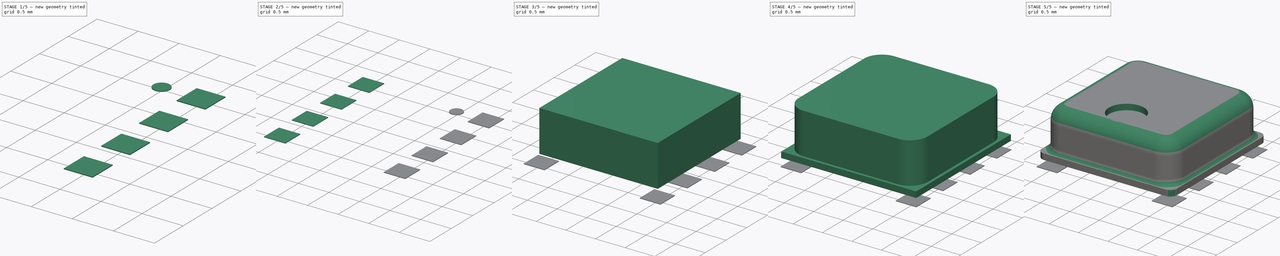
[diagram: build sequence overview — one tinted view per stage of 5, left to right]
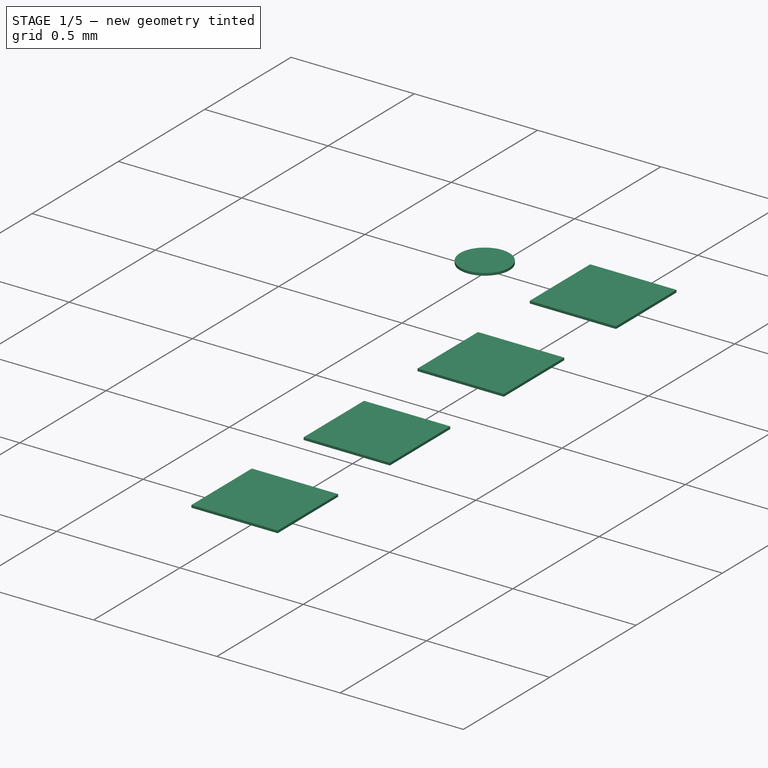
[diagram: stage 1 of 5 — iso view after this stage's code; geometry added in this stage tinted green]
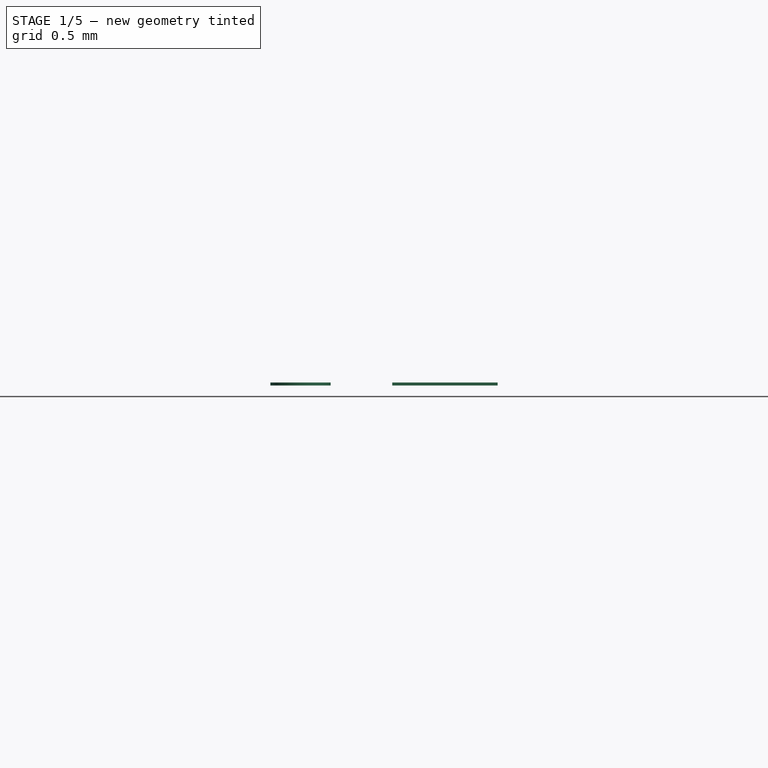
[diagram: stage 1 of 5 — front view after this stage's code; geometry added in this stage tinted green]
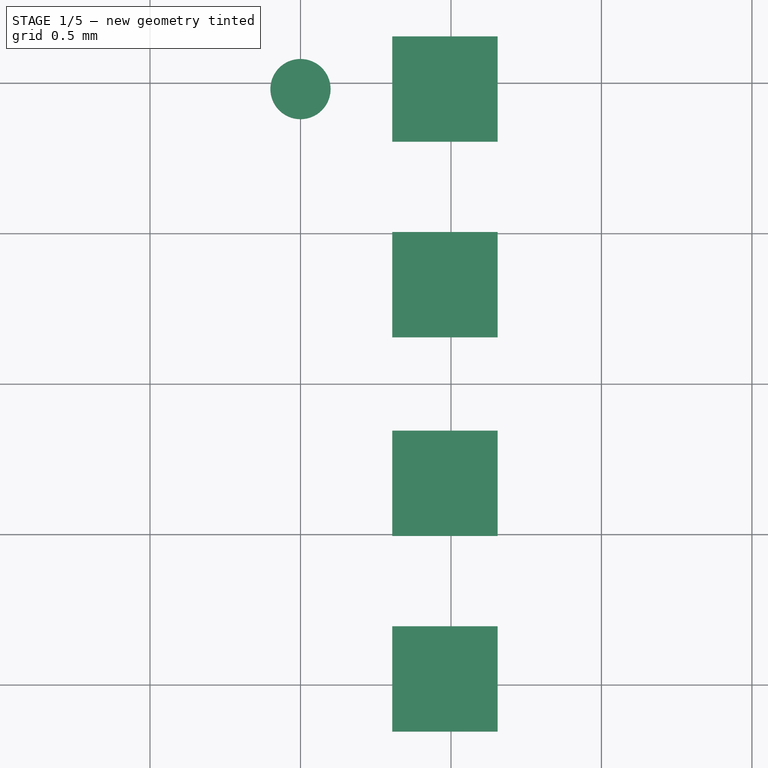
[diagram: stage 1 of 5 — top view after this stage's code; geometry added in this stage tinted green]
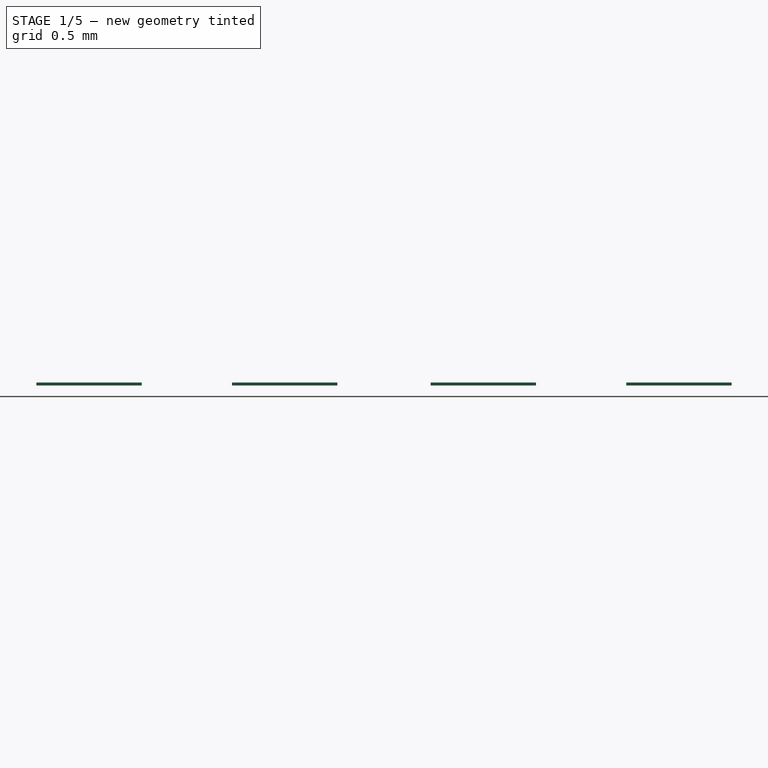
[diagram: stage 1 of 5 — right view after this stage's code; geometry added in this stage tinted green]
FCSTD DOCUMENT  (FreeCAD 0.17R12595 (Git))
Label: Bosch_LGA-8_2.5x2.5mm_Pitch0.65mm_ClockwisePinNumbering
License: All rights reserved
LicenseURL: http://en.wikipedia.org/wiki/All_rights_reserved
objects: Sketcher::SketchObject×15, PartDesign::Pad×14, PartDesign::Body×13, PartDesign::Fillet×7, PartDesign::ShapeBinder×3, PartDesign::Pocket×1, Part::Cut×1, Part::MultiFuse×1, Part::Feature×1
note: 71 computed .brp shape members not serialized (recipe doc carries the construction recipe); baked Part::Feature solids carry a one-line shape summary decoded from their .brp

FEATURE [PartDesign::Body] Body007  label="pad_5_SDO"
  Group = -> [Sketch009,Pad008]
  Origin = -> Origin007
  Tip = -> Pad008
FEATURE [Sketcher::SketchObject] Sketch010
  MapMode = 5
  Support = -> [XY_Plane008]
  sketch-geometry (4):
    g0: LineSegment StartX=0.805 StartY=-0.805 StartZ=0 EndX=1.155 EndY=-0.805 EndZ=0
    g1: LineSegment StartX=1.155 StartY=-0.805 StartZ=0 EndX=1.155 EndY=-1.155 EndZ=0
    g2: LineSegment StartX=1.155 StartY=-1.155 StartZ=0 EndX=0.805 EndY=-1.155 EndZ=0
    g3: LineSegment StartX=0.805 StartY=-1.155 StartZ=0 EndX=0.805 EndY=-0.805 EndZ=0
  constraints (12):
    c: Coincident(g0,g1)
    c: Coincident(g1,g2)
    c: Coincident(g2,g3)
    c: Coincident(g3,g0)
    c: Horizontal(g0)
    c: Horizontal(g2)
    c: Vertical(g1)
    c: Vertical(g3)
    c: Equal(g0,g1)
    c: Distance(g0) = 0.35
    c: DistanceX(g0) = 0.805
    c: DistanceY(g0) = -0.805
FEATURE [PartDesign::Pad] Pad009
  Length = 0.01
  Length2 = 100
  Profile = -> Sketch010
  Reversed = true
  Type = 0
FEATURE [PartDesign::Body] Body008  label="pad_4_SCK"
  Group = -> [Sketch010,Pad009]
  Origin = -> Origin008
  Tip = -> Pad009
FEATURE [Sketcher::SketchObject] Sketch011
  MapMode = 5
  Support = -> [XY_Plane009]
  sketch-geometry (4):
    g0: LineSegment StartX=0.805 StartY=-0.155 StartZ=0 EndX=1.155 EndY=-0.155 EndZ=0
    g1: LineSegment StartX=1.155 StartY=-0.155 StartZ=0 EndX=1.155 EndY=-0.505 EndZ=0
    g2: LineSegment StartX=1.155 StartY=-0.505 StartZ=0 EndX=0.805 EndY=-0.505 EndZ=0
    g3: LineSegment StartX=0.805 StartY=-0.505 StartZ=0 EndX=0.805 EndY=-0.155 EndZ=0
  constraints (12):
    c: Coincident(g0,g1)
    c: Coincident(g1,g2)
    c: Coincident(g2,g3)
    c: Coincident(g3,g0)
    c: Horizontal(g0)
    c: Horizontal(g2)
    c: Vertical(g1)
    c: Vertical(g3)
    c: Equal(g0,g1)
    c: Distance(g1) = 0.35
    c: DistanceX(g2) = 0.805
    c: DistanceY(g2) = -0.505
FEATURE [PartDesign::Pad] Pad010
  Length = 0.01
  Length2 = 100
  Profile = -> Sketch011
  Reversed = true
  Type = 0
FEATURE [PartDesign::Body] Body009  label="pad_3_SDI"
  Group = -> [Sketch011,Pad010]
  Origin = -> Origin009
  Tip = -> Pad010
FEATURE [Sketcher::SketchObject] Sketch012
  MapMode = 5
  Support = -> [XY_Plane010]
  sketch-geometry (4):
    g0: LineSegment StartX=0.805 StartY=0.505 StartZ=0 EndX=1.155 EndY=0.505 EndZ=0
    g1: LineSegment StartX=1.155 StartY=0.505 StartZ=0 EndX=1.155 EndY=0.155 EndZ=0
    g2: LineSegment StartX=1.155 StartY=0.155 StartZ=0 EndX=0.805 EndY=0.155 EndZ=0
    g3: LineSegment StartX=0.805 StartY=0.155 StartZ=0 EndX=0.805 EndY=0.505 EndZ=0
  constraints (12):
    c: Coincident(g0,g1)
    c: Coincident(g1,g2)
    c: Coincident(g2,g3)
    c: Coincident(g3,g0)
    c: Horizontal(g0)
    c: Horizontal(g2)
    c: Vertical(g1)
    c: Vertical(g3)
    c: Equal(g1,g0)
    c: Distance(g0) = 0.35
    c: DistanceX(g0) = 0.805
    c: DistanceY(g0) = 0.505
FEATURE [PartDesign::Pad] Pad011
  Length = 0.01
  Length2 = 100
  Profile = -> Sketch012
  Reversed = true
  Type = 0
FEATURE [PartDesign::Body] Body010  label="pad_2_CSB"
  Group = -> [Sketch012,Pad011]
  Origin = -> Origin010
  Tip = -> Pad011
FEATURE [Sketcher::SketchObject] Sketch013
  MapMode = 5
  Support = -> [XY_Plane011]
  sketch-geometry (4):
    g0: LineSegment StartX=0.805 StartY=1.155 StartZ=0 EndX=1.155 EndY=1.155 EndZ=0
    g1: LineSegment StartX=1.155 StartY=1.155 StartZ=0 EndX=1.155 EndY=0.805 EndZ=0
    g2: LineSegment StartX=1.155 StartY=0.805 StartZ=0 EndX=0.805 EndY=0.805 EndZ=0
    g3: LineSegment StartX=0.805 StartY=0.805 StartZ=0 EndX=0.805 EndY=1.155 EndZ=0
  constraints (12):
    c: Coincident(g0,g1)
    c: Coincident(g1,g2)
    c: Coincident(g2,g3)
    c: Coincident(g3,g0)
    c: Horizontal(g0)
    c: Horizontal(g2)
    c: Vertical(g1)
    c: Vertical(g3)
    c: Equal(g0,g1)
    c: Distance(g0) = 0.35
    c: DistanceX(g0) = 0.805
    c: DistanceY(g2) = 0.805
FEATURE [PartDesign::Pad] Pad012
  Length = 0.01
  Length2 = 100
  Profile = -> Sketch013
  Reversed = true
  Type = 0
FEATURE [PartDesign::Body] Body011  label="pad_1_GND"
  Group = -> [Sketch013,Pad012]
  Origin = -> Origin011
  Tip = -> Pad012
FEATURE [Sketcher::SketchObject] Sketch014
  MapMode = 5
  Support = -> [XY_Plane012]
  sketch-geometry (1):
    g0: Circle CenterX=0.5 CenterY=0.98 CenterZ=0 NormalX=0 NormalY=0 NormalZ=1 AngleXU=0 Radius=0.1
  constraints (3):
    c: Radius(g0) = 0.1
    c: DistanceX(g0) = 0.5
    c: DistanceY(g0) = 0.98
FEATURE [PartDesign::Pad] Pad013
  Length = 0.01
  Length2 = 100
  Profile = -> Sketch014
  Reversed = true
  Type = 0
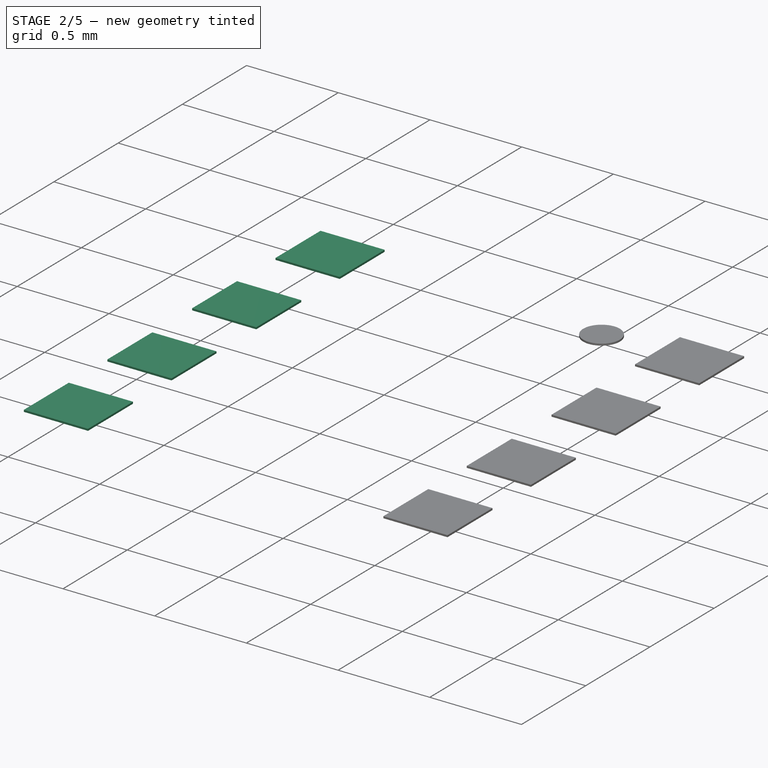
[diagram: stage 2 of 5 — iso view after this stage's code; geometry added in this stage tinted green]
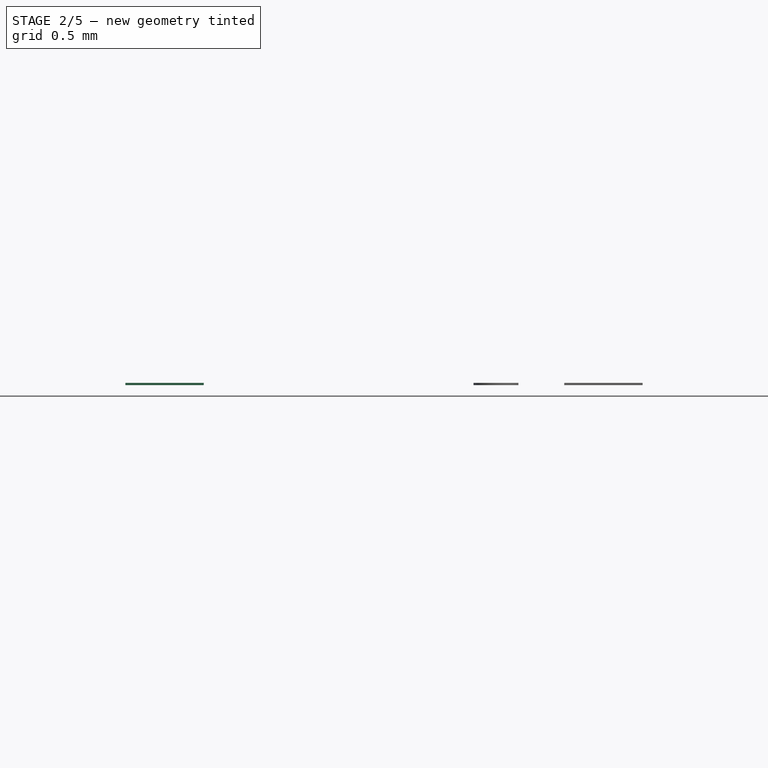
[diagram: stage 2 of 5 — front view after this stage's code; geometry added in this stage tinted green]
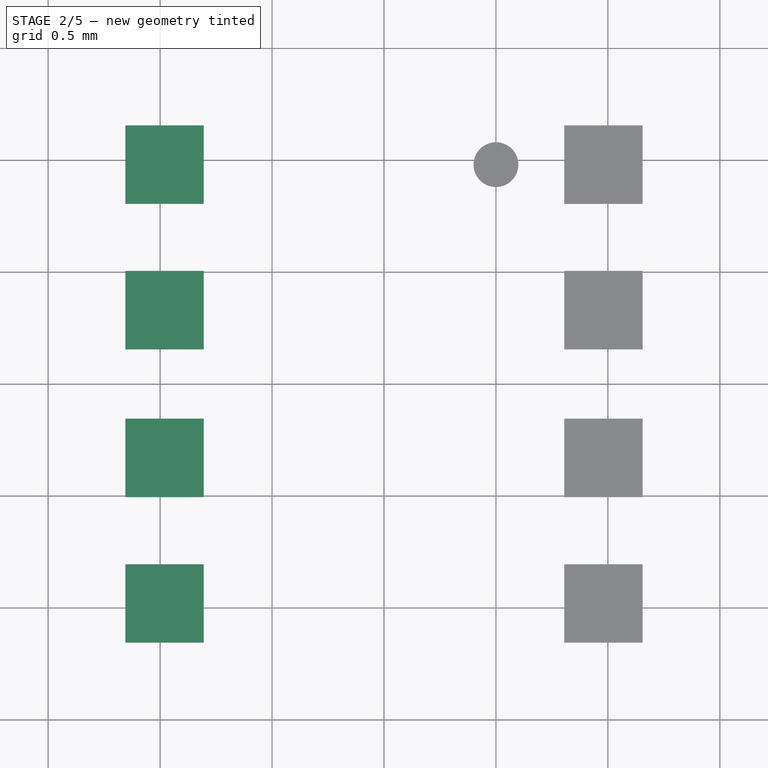
[diagram: stage 2 of 5 — top view after this stage's code; geometry added in this stage tinted green]
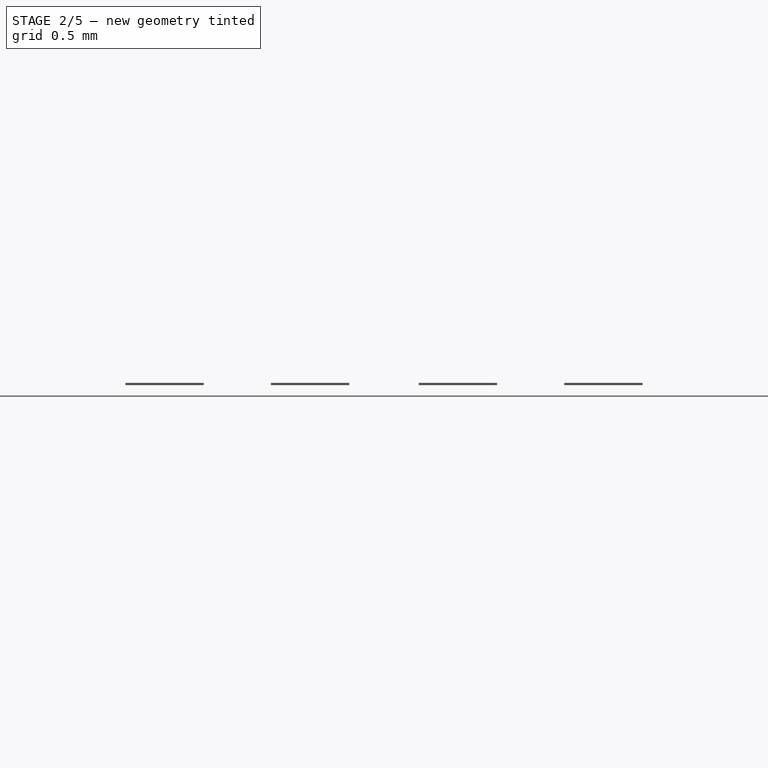
[diagram: stage 2 of 5 — right view after this stage's code; geometry added in this stage tinted green]
FEATURE [PartDesign::Body] Body003  label="metal_package_base"
  Group = -> [ReferencePad002,Sketch005,Pad004,Fillet006]
  Origin = -> Origin003
  Tip = -> Fillet006
FEATURE [Sketcher::SketchObject] Sketch006
  MapMode = 5
  Support = -> [XY_Plane004]
  sketch-geometry (4):
    g0: LineSegment StartX=-1.155 StartY=1.155 StartZ=0 EndX=-0.805 EndY=1.155 EndZ=0
    g1: LineSegment StartX=-0.805 StartY=1.155 StartZ=0 EndX=-0.805 EndY=0.805 EndZ=0
    g2: LineSegment StartX=-0.805 StartY=0.805 StartZ=0 EndX=-1.155 EndY=0.805 EndZ=0
    g3: LineSegment StartX=-1.155 StartY=0.805 StartZ=0 EndX=-1.155 EndY=1.155 EndZ=0
  constraints (12):
    c: Coincident(g0,g1)
    c: Coincident(g1,g2)
    c: Coincident(g2,g3)
    c: Coincident(g3,g0)
    c: Horizontal(g0)
    c: Horizontal(g2)
    c: Vertical(g1)
    c: Vertical(g3)
    c: Equal(g1,g0)
    c: Distance(g0) = 0.35
    c: DistanceX(g0) = -0.805
    c: DistanceY(g1) = 0.805
FEATURE [PartDesign::Pad] Pad005
  Length = 0.01
  Length2 = 100
  Profile = -> Sketch006
  Reversed = true
  Type = 0
FEATURE [PartDesign::Body] Body004  label="pad_8_VDD"
  Group = -> [Sketch006,Pad005]
  Origin = -> Origin004
  Tip = -> Pad005
FEATURE [Sketcher::SketchObject] Sketch007
  MapMode = 5
  Support = -> [XY_Plane005]
  sketch-geometry (4):
    g0: LineSegment StartX=-1.155 StartY=0.505 StartZ=0 EndX=-0.805 EndY=0.505 EndZ=0
    g1: LineSegment StartX=-0.805 StartY=0.505 StartZ=0 EndX=-0.805 EndY=0.155 EndZ=0
    g2: LineSegment StartX=-0.805 StartY=0.155 StartZ=0 EndX=-1.155 EndY=0.155 EndZ=0
    g3: LineSegment StartX=-1.155 StartY=0.155 StartZ=0 EndX=-1.155 EndY=0.505 EndZ=0
  constraints (12):
    c: Coincident(g0,g1)
    c: Coincident(g1,g2)
    c: Coincident(g2,g3)
    c: Coincident(g3,g0)
    c: Horizontal(g0)
    c: Horizontal(g2)
    c: Vertical(g1)
    c: Vertical(g3)
    c: Equal(g1,g0)
    c: Distance(g0) = 0.35
    c: DistanceX(g0) = -0.805
    c: DistanceY(g0) = 0.505
FEATURE [PartDesign::Pad] Pad006
  Length = 0.01
  Length2 = 100
  Profile = -> Sketch007
  Reversed = true
  Type = 0
FEATURE [PartDesign::Body] Body005  label="pad_7_GND"
  Group = -> [Sketch007,Pad006]
  Origin = -> Origin005
  Tip = -> Pad006
FEATURE [Sketcher::SketchObject] Sketch008
  MapMode = 5
  Support = -> [XY_Plane006]
  sketch-geometry (4):
    g0: LineSegment StartX=-1.155 StartY=-0.155 StartZ=0 EndX=-0.805 EndY=-0.155 EndZ=0
    g1: LineSegment StartX=-0.805 StartY=-0.155 StartZ=0 EndX=-0.805 EndY=-0.505 EndZ=0
    g2: LineSegment StartX=-0.805 StartY=-0.505 StartZ=0 EndX=-1.155 EndY=-0.505 EndZ=0
    g3: LineSegment StartX=-1.155 StartY=-0.505 StartZ=0 EndX=-1.155 EndY=-0.155 EndZ=0
  constraints (12):
    c: Coincident(g0,g1)
    c: Coincident(g1,g2)
    c: Coincident(g2,g3)
    c: Coincident(g3,g0)
    c: Horizontal(g0)
    c: Horizontal(g2)
    c: Vertical(g1)
    c: Vertical(g3)
    c: Equal(g1,g0)
    c: Distance(g0) = 0.35
    c: DistanceX(g0) = -0.805
    c: DistanceY(g1) = -0.505
FEATURE [PartDesign::Pad] Pad007
  Length = 0.01
  Length2 = 100
  Profile = -> Sketch008
  Reversed = true
  Type = 0
FEATURE [PartDesign::Body] Body006  label="pad_6_VDDIO"
  Group = -> [Sketch008,Pad007]
  Origin = -> Origin006
  Tip = -> Pad007
FEATURE [Sketcher::SketchObject] Sketch009
  MapMode = 5
  Support = -> [XY_Plane007]
  sketch-geometry (4):
    g0: LineSegment StartX=-1.155 StartY=-0.805 StartZ=0 EndX=-0.805 EndY=-0.805 EndZ=0
    g1: LineSegment StartX=-0.805 StartY=-0.805 StartZ=0 EndX=-0.805 EndY=-1.155 EndZ=0
    g2: LineSegment StartX=-0.805 StartY=-1.155 StartZ=0 EndX=-1.155 EndY=-1.155 EndZ=0
    g3: LineSegment StartX=-1.155 StartY=-1.155 StartZ=0 EndX=-1.155 EndY=-0.805 EndZ=0
  constraints (12):
    c: Coincident(g0,g1)
    c: Coincident(g1,g2)
    c: Coincident(g2,g3)
    c: Coincident(g3,g0)
    c: Horizontal(g0)
    c: Horizontal(g2)
    c: Vertical(g1)
    c: Vertical(g3)
    c: Equal(g1,g0)
    c: Distance(g0) = 0.35
    c: DistanceX(g0) = -0.805
    c: DistanceY(g0) = -0.805
FEATURE [PartDesign::Pad] Pad008
  Length = 0.01
  Length2 = 100
  Profile = -> Sketch009
  Reversed = true
  Type = 0
FEATURE [PartDesign::Body] Body012  label="marker_pad"
  Group = -> [Sketch014,Pad013]
  Origin = -> Origin012
  Tip = -> Pad013
FEATURE [Part::MultiFuse] Fusion  label="pads"
  Shapes = -> [Body004,Body007,Body005,Body006,Body009,Body012,Body010,Body008,Body011]
FEATURE [Part::Feature] Shape  label="Bosch_LGA-8_2.5x2.5mm_Pitch0.65mm_ClockwisePinNumbering"
  shape: bbox 2.5 x 2.5 x 0.94 mm, 112 faces (baked)
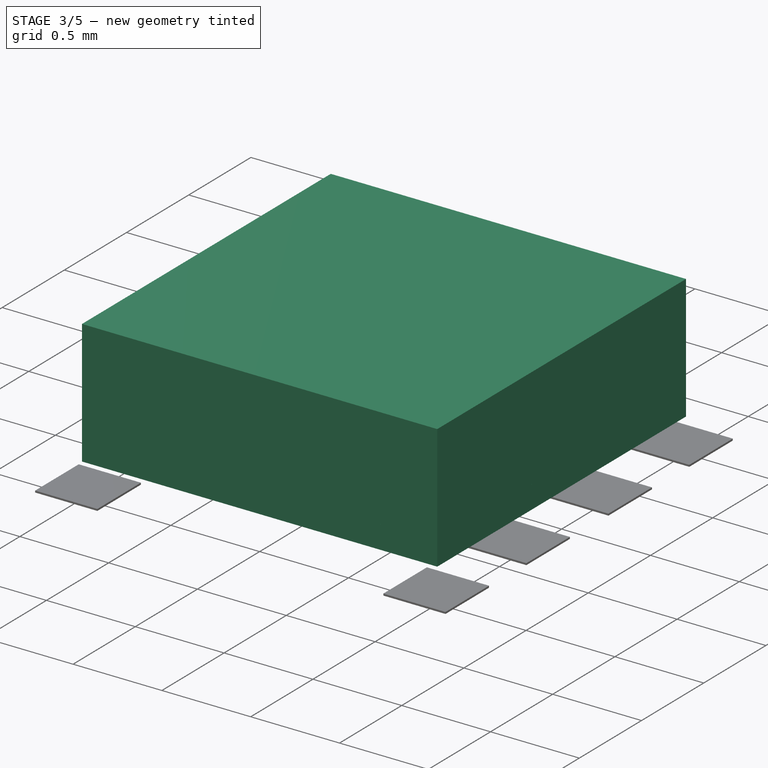
[diagram: stage 3 of 5 — iso view after this stage's code; geometry added in this stage tinted green]
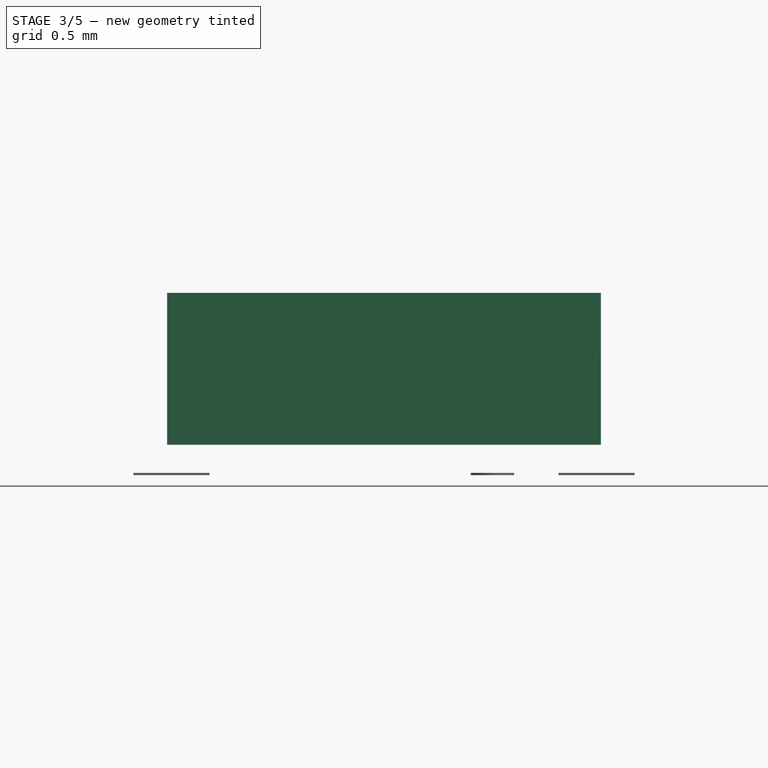
[diagram: stage 3 of 5 — front view after this stage's code; geometry added in this stage tinted green]
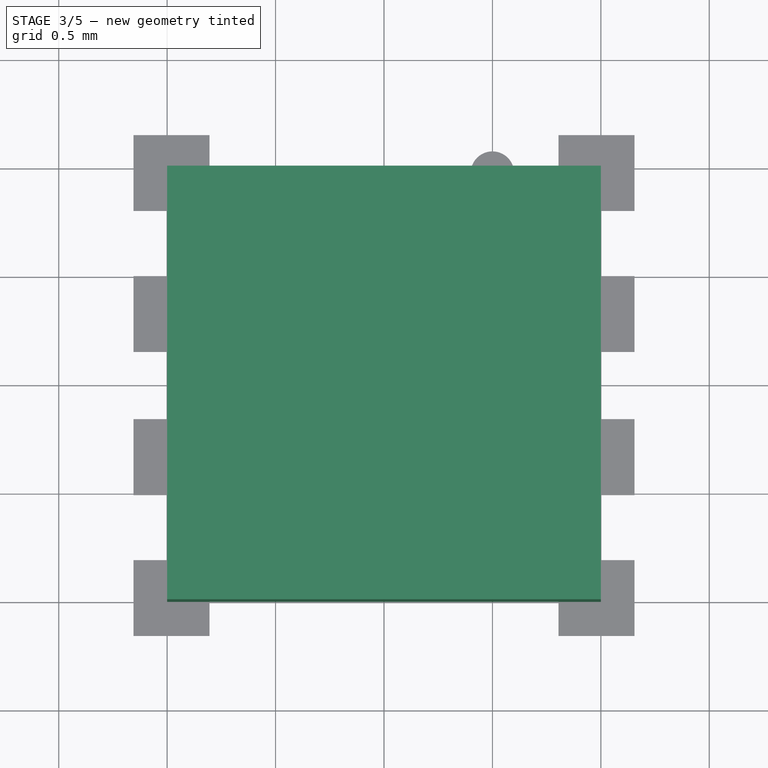
[diagram: stage 3 of 5 — top view after this stage's code; geometry added in this stage tinted green]
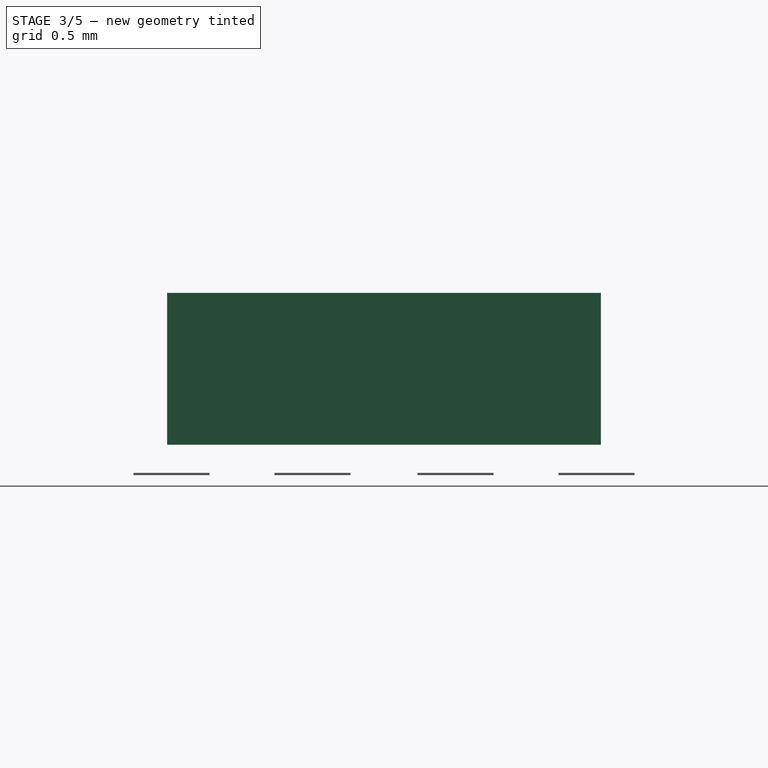
[diagram: stage 3 of 5 — right view after this stage's code; geometry added in this stage tinted green]
FEATURE [Sketcher::SketchObject] Sketch
  MapMode = 5
  Support = -> [XY_Plane]
  sketch-geometry (4):
    g0: LineSegment StartX=-1.25 StartY=1.25 StartZ=0 EndX=1.25 EndY=1.25 EndZ=0
    g1: LineSegment StartX=1.25 StartY=1.25 StartZ=0 EndX=1.25 EndY=-1.25 EndZ=0
    g2: LineSegment StartX=1.25 StartY=-1.25 StartZ=0 EndX=-1.25 EndY=-1.25 EndZ=0
    g3: LineSegment StartX=-1.25 StartY=-1.25 StartZ=0 EndX=-1.25 EndY=1.25 EndZ=0
  constraints (12):
    c: Coincident(g0,g1)
    c: Coincident(g1,g2)
    c: Coincident(g2,g3)
    c: Coincident(g3,g0)
    c: Horizontal(g0)
    c: Horizontal(g2)
    c: Vertical(g1)
    c: Vertical(g3)
    c: Symmetric(g0,g1,g-1)
    c: Symmetric(g0,g0,g-2)
    c: Equal(g0,g1)
    c: Distance(g0) = 2.5
FEATURE [PartDesign::Pad] Pad
  Length = 0.13
  Length2 = 100
  Profile = -> Sketch
  Type = 0
FEATURE [PartDesign::Body] Body001  label="metal_can"
  Group = -> [ReferencePad,Sketch001,Pad001,Sketch002,Pad002,Fillet,Fillet001,Fillet002,Fillet003,Sketch003,Pocket]
  Origin = -> Origin001
  Tip = -> Pocket
FEATURE [PartDesign::ShapeBinder] ReferencePad001
  Placement = pos=(0,0,0.13) rot=(0,0,1;0rad)
  Support = -> [Pad]
FEATURE [Sketcher::SketchObject] Sketch004
  MapMode = 5
  Placement = pos=(0,0,0.13) rot=(0,0,1;0rad)
  Support = -> [ReferencePad001]
  sketch-geometry (4):
    g0: LineSegment StartX=-1 StartY=1 StartZ=0 EndX=1 EndY=1 EndZ=0
    g1: LineSegment StartX=1 StartY=1 StartZ=0 EndX=1 EndY=-1 EndZ=0
    g2: LineSegment StartX=1 StartY=-1 StartZ=0 EndX=-1 EndY=-1 EndZ=0
    g3: LineSegment StartX=-1 StartY=-1 StartZ=0 EndX=-1 EndY=1 EndZ=0
  constraints (12):
    c: Coincident(g0,g1)
    c: Coincident(g1,g2)
    c: Coincident(g2,g3)
    c: Coincident(g3,g0)
    c: Horizontal(g0)
    c: Horizontal(g2)
    c: Vertical(g1)
    c: Vertical(g3)
    c: Symmetric(g0,g1,g-1)
    c: Symmetric(g0,g0,g-2)
    c: Equal(g1,g0)
    c: Distance(g0) = 2
FEATURE [PartDesign::Pad] Pad003
  Length = 0.7
  Length2 = 100
  Placement = pos=(0,0,0.13) rot=(0,0,1;0rad)
  Profile = -> Sketch004
  Type = 0
FEATURE [PartDesign::ShapeBinder] ReferencePad002
  Placement = pos=(0,0,0.13) rot=(0,0,1;0rad)
  Support = -> [Pad]
FEATURE [Sketcher::SketchObject] Sketch005
  MapMode = 5
  Placement = pos=(0,0,0.13) rot=(0,0,1;0rad)
  Support = -> [ReferencePad002]
  sketch-geometry (4):
    g0: LineSegment StartX=-1 StartY=1 StartZ=0 EndX=1 EndY=1 EndZ=0
    g1: LineSegment StartX=1 StartY=1 StartZ=0 EndX=1 EndY=-1 EndZ=0
    g2: LineSegment StartX=1 StartY=-1 StartZ=0 EndX=-1 EndY=-1 EndZ=0
    g3: LineSegment StartX=-1 StartY=-1 StartZ=0 EndX=-1 EndY=1 EndZ=0
  constraints (12):
    c: Coincident(g0,g1)
    c: Coincident(g1,g2)
    c: Coincident(g2,g3)
    c: Coincident(g3,g0)
    c: Horizontal(g0)
    c: Horizontal(g2)
    c: Vertical(g1)
    c: Vertical(g3)
    c: Symmetric(g0,g0,g-2)
    c: Symmetric(g0,g1,g-1)
    c: Equal(g0,g1)
    c: Distance(g0) = 2
FEATURE [PartDesign::Pad] Pad004
  Length = 0.13
  Length2 = 100
  Placement = pos=(0,0,0.13) rot=(0,0,1;0rad)
  Profile = -> Sketch005
  Type = 0
FEATURE [PartDesign::Fillet] Fillet006
  Base = -> Pad004 [Edge1,Edge8,Edge5,Edge2]
  BaseFeature = -> Pad004
  Placement = pos=(0,0,0.13) rot=(0,0,1;0rad)
  Radius = 0.3
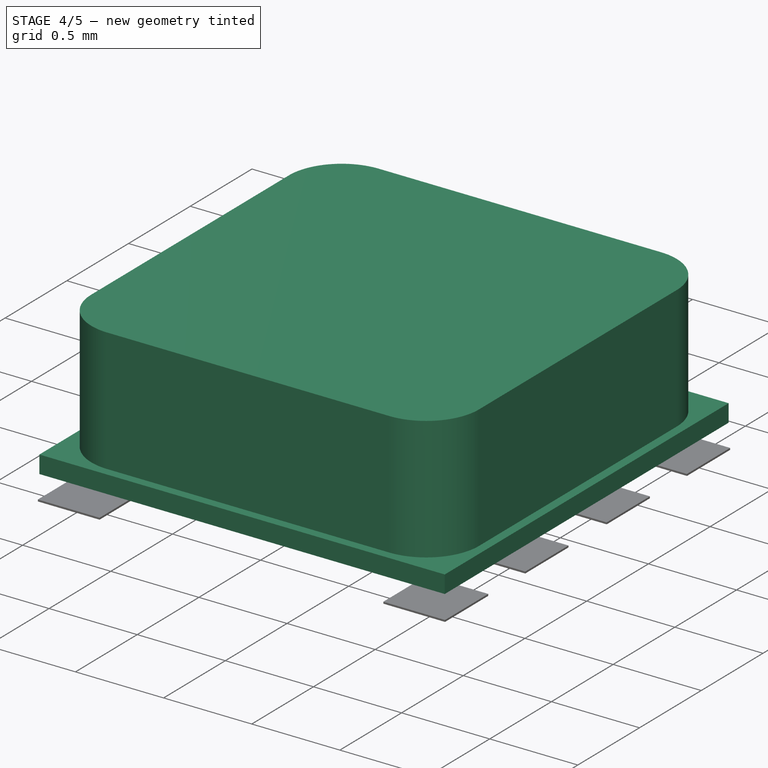
[diagram: stage 4 of 5 — iso view after this stage's code; geometry added in this stage tinted green]
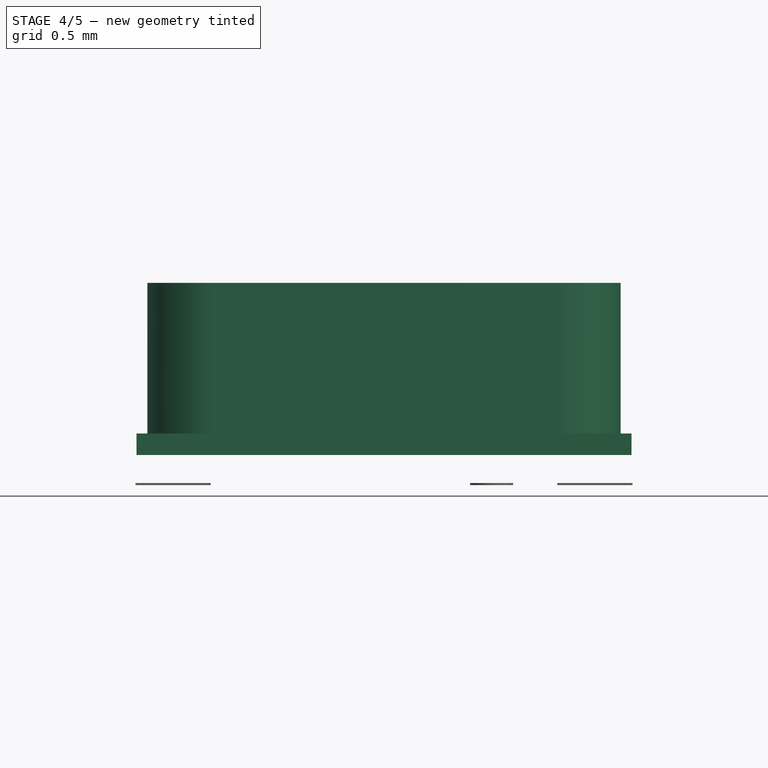
[diagram: stage 4 of 5 — front view after this stage's code; geometry added in this stage tinted green]
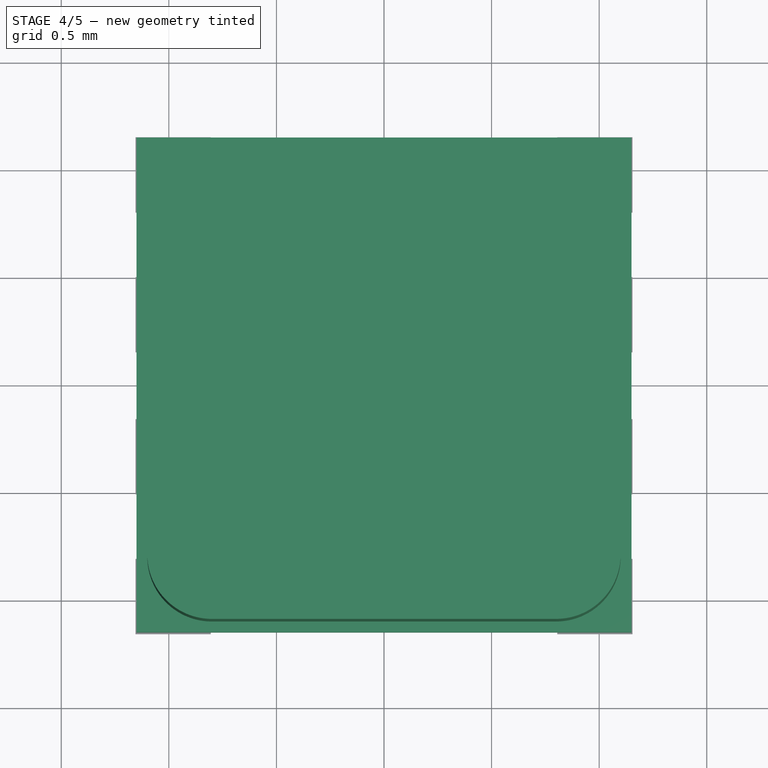
[diagram: stage 4 of 5 — top view after this stage's code; geometry added in this stage tinted green]
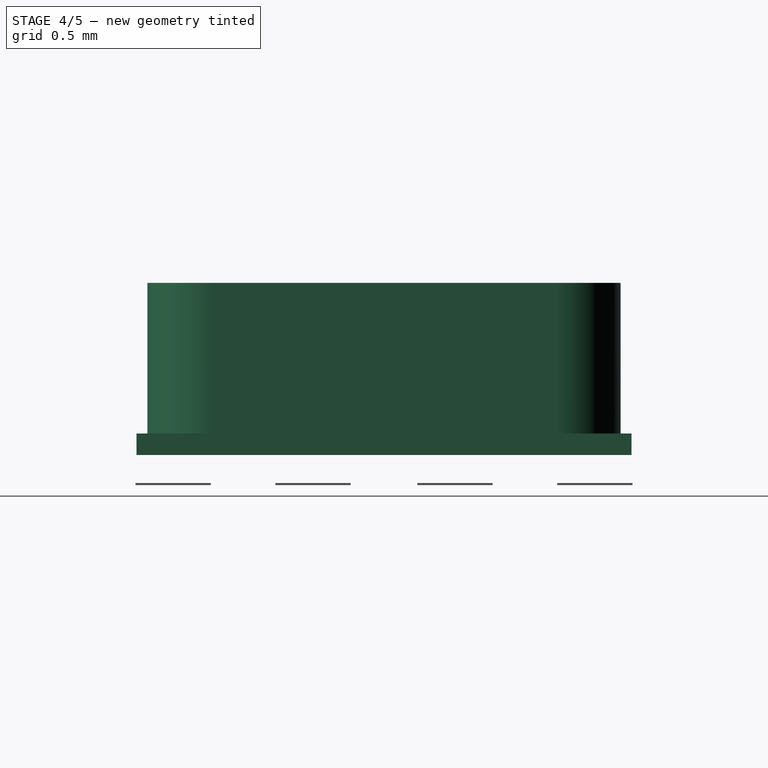
[diagram: stage 4 of 5 — right view after this stage's code; geometry added in this stage tinted green]
FEATURE [PartDesign::Body] Body  label="base_pacb"
  Group = -> [Sketch,Pad]
  Origin = -> Origin
  Tip = -> Pad
FEATURE [PartDesign::ShapeBinder] ReferencePad
  Placement = pos=(0,0,0.13) rot=(0,0,1;0rad)
  Support = -> [Pad]
FEATURE [Sketcher::SketchObject] Sketch001
  MapMode = 5
  Placement = pos=(0,0,0.13) rot=(0,0,1;0rad)
  Support = -> [ReferencePad]
  sketch-geometry (4):
    g0: LineSegment StartX=-1.15 StartY=1.15 StartZ=0 EndX=1.15 EndY=1.15 EndZ=0
    g1: LineSegment StartX=1.15 StartY=1.15 StartZ=0 EndX=1.15 EndY=-1.15 EndZ=0
    g2: LineSegment StartX=1.15 StartY=-1.15 StartZ=0 EndX=-1.15 EndY=-1.15 EndZ=0
    g3: LineSegment StartX=-1.15 StartY=-1.15 StartZ=0 EndX=-1.15 EndY=1.15 EndZ=0
  constraints (12):
    c: Coincident(g0,g1)
    c: Coincident(g1,g2)
    c: Coincident(g2,g3)
    c: Coincident(g3,g0)
    c: Horizontal(g0)
    c: Horizontal(g2)
    c: Vertical(g1)
    c: Vertical(g3)
    c: Symmetric(g0,g0,g-2)
    c: Symmetric(g0,g1,g-1)
    c: Equal(g0,g1)
    c: Distance(g0) = 2.3
FEATURE [PartDesign::Pad] Pad001
  Length = 0.1
  Length2 = 100
  Placement = pos=(0,0,0.13) rot=(0,0,1;0rad)
  Profile = -> Sketch001
  Type = 0
FEATURE [Sketcher::SketchObject] Sketch002
  MapMode = 5
  Placement = pos=(0,0,0.23) rot=(0,0,1;0rad)
  Support = -> [Pad001]
  sketch-geometry (4):
    g0: LineSegment StartX=-1.1 StartY=1.1 StartZ=0 EndX=1.1 EndY=1.1 EndZ=0
    g1: LineSegment StartX=1.1 StartY=1.1 StartZ=0 EndX=1.1 EndY=-1.1 EndZ=0
    g2: LineSegment StartX=1.1 StartY=-1.1 StartZ=0 EndX=-1.1 EndY=-1.1 EndZ=0
    g3: LineSegment StartX=-1.1 StartY=-1.1 StartZ=0 EndX=-1.1 EndY=1.1 EndZ=0
  constraints (12):
    c: Coincident(g0,g1)
    c: Coincident(g1,g2)
    c: Coincident(g2,g3)
    c: Coincident(g3,g0)
    c: Horizontal(g0)
    c: Horizontal(g2)
    c: Vertical(g1)
    c: Vertical(g3)
    c: Symmetric(g0,g0,g-2)
    c: Symmetric(g0,g1,g-1)
    c: Equal(g0,g1)
    c: Distance(g0) = 2.2
FEATURE [PartDesign::Pad] Pad002
  BaseFeature = -> Pad001
  Length = 0.7
  Length2 = 100
  Placement = pos=(0,0,0.13) rot=(0,0,1;0rad)
  Profile = -> Sketch002
  Type = 0
FEATURE [PartDesign::Fillet] Fillet
  Base = -> Pad002 [Edge19,Edge17,Edge23,Edge21]
  BaseFeature = -> Pad002
  Placement = pos=(0,0,0.13) rot=(0,0,1;0rad)
  Radius = 0.3
FEATURE [PartDesign::Fillet] Fillet004
  Base = -> Pad003 [Edge1,Edge8,Edge5,Edge2]
  BaseFeature = -> Pad003
  Placement = pos=(0,0,0.13) rot=(0,0,1;0rad)
  Radius = 0.3
FEATURE [PartDesign::Fillet] Fillet005
  Base = -> Fillet004 [Edge16,Edge13,Edge4,Edge15,Edge17,Edge19,Edge20,Edge18]
  BaseFeature = -> Fillet004
  Placement = pos=(0,0,0.13) rot=(0,0,1;0rad)
  Radius = 0.25
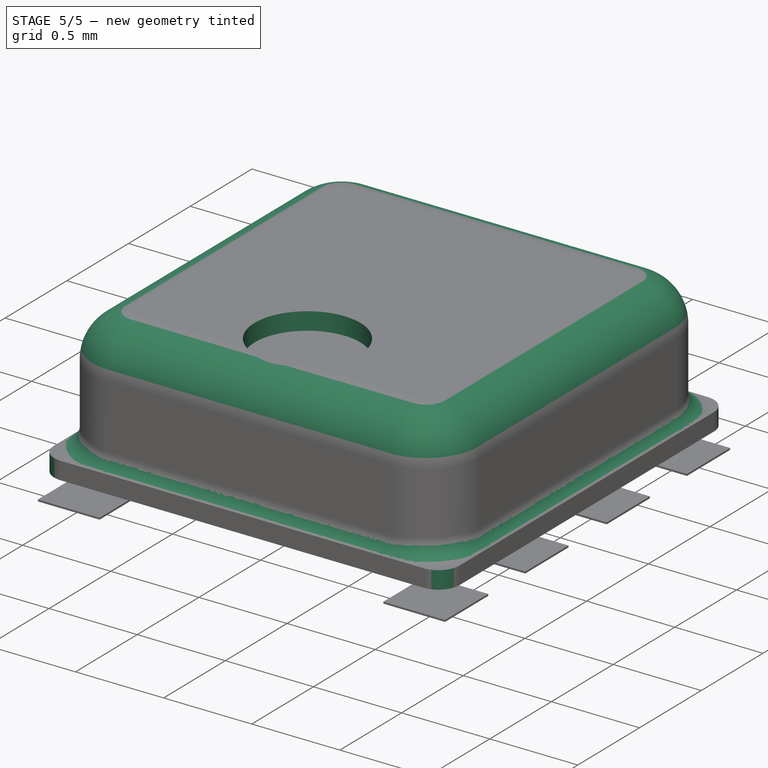
[diagram: stage 5 of 5 — iso view after this stage's code; geometry added in this stage tinted green]
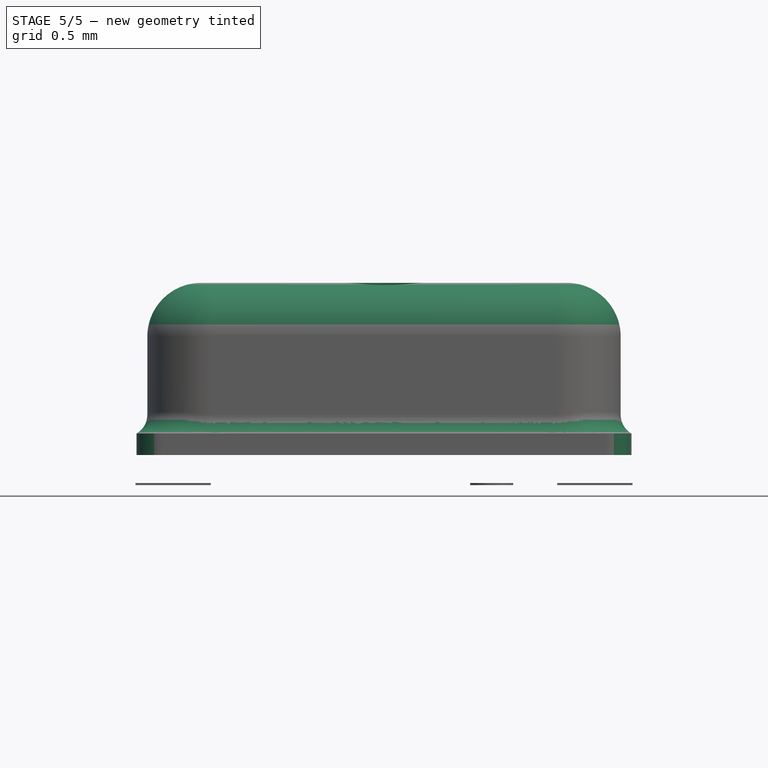
[diagram: stage 5 of 5 — front view after this stage's code; geometry added in this stage tinted green]
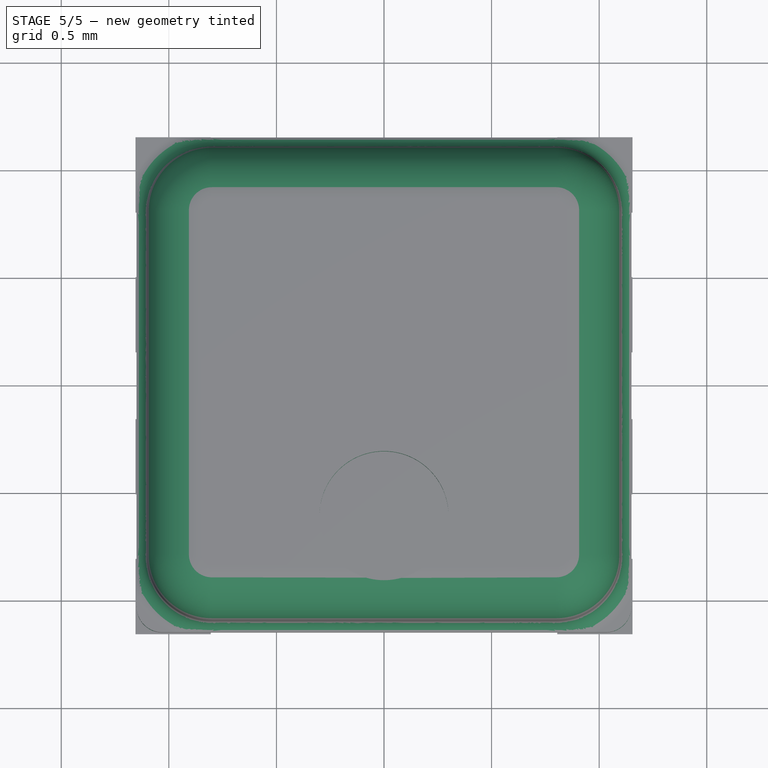
[diagram: stage 5 of 5 — top view after this stage's code; geometry added in this stage tinted green]
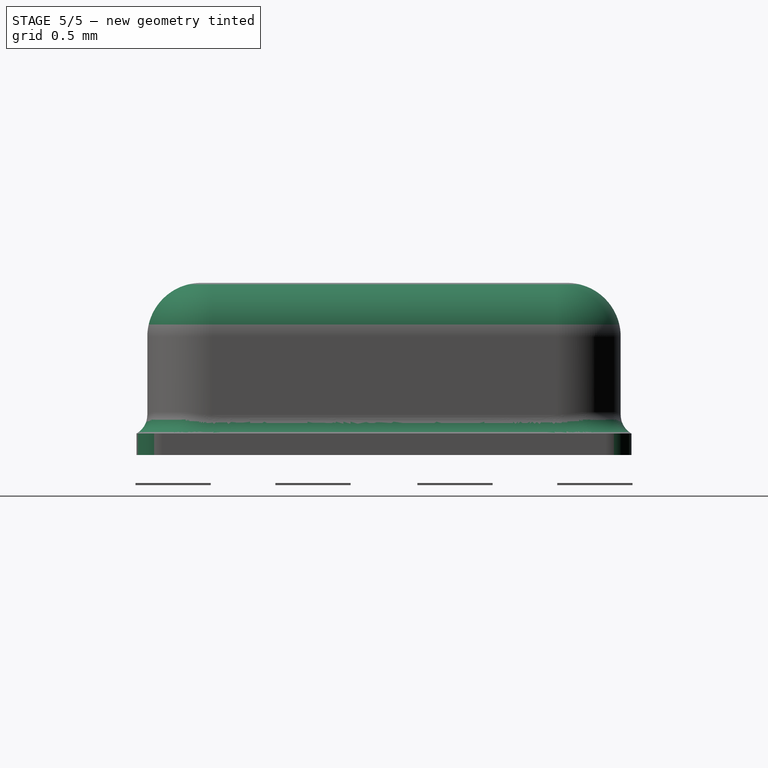
[diagram: stage 5 of 5 — right view after this stage's code; geometry added in this stage tinted green]
FEATURE [PartDesign::Fillet] Fillet001
  Base = -> Fillet [Edge29,Edge32,Edge34,Edge30]
  BaseFeature = -> Fillet
  Placement = pos=(0,0,0.13) rot=(0,0,1;0rad)
  Radius = 0.12
FEATURE [PartDesign::Fillet] Fillet002
  Base = -> Fillet001 [Edge48,Edge45,Edge41,Edge43,Edge47,Edge39,Edge35,Edge37]
  BaseFeature = -> Fillet001
  Placement = pos=(0,0,0.13) rot=(0,0,1;0rad)
  Radius = 0.25
FEATURE [PartDesign::Fillet] Fillet003
  Base = -> Fillet002 [Edge21,Edge23,Edge24,Edge19,Edge3,Edge6,Edge20,Edge22]
  BaseFeature = -> Fillet002
  Placement = pos=(0,0,0.13) rot=(0,0,1;0rad)
  Radius = 0.1
FEATURE [Sketcher::SketchObject] Sketch003
  MapMode = 5
  Placement = pos=(0,0,0.93) rot=(0,0,1;0rad)
  Support = -> [Fillet003]
  sketch-geometry (1):
    g0: Circle CenterX=0 CenterY=-0.62 CenterZ=0 NormalX=0 NormalY=0 NormalZ=1 AngleXU=0 Radius=0.3
  constraints (3):
    c: DistanceY(g0) = -0.62
    c: DistanceX(g0) = 0
    c: Radius(g0) = 0.3
FEATURE [PartDesign::Pocket] Pocket
  BaseFeature = -> Fillet003
  Length = 0.7
  Placement = pos=(0,0,0.13) rot=(0,0,1;0rad)
  Profile = -> Sketch003
  Type = 0
FEATURE [PartDesign::Body] Body002
  Group = -> [ReferencePad001,Sketch004,Pad003,Fillet004,Fillet005]
  Origin = -> Origin002
  Tip = -> Fillet005
FEATURE [Part::Cut] Cut  label="hollow_metal_package"
  Base = -> Body001
  Tool = -> Body002
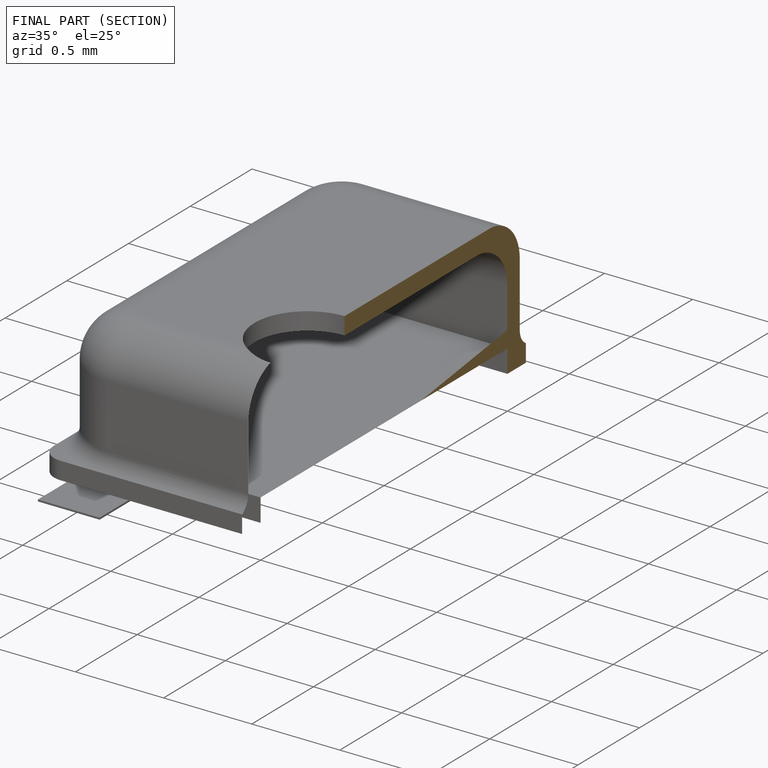
[diagram: finished part — half-section view (interior)]
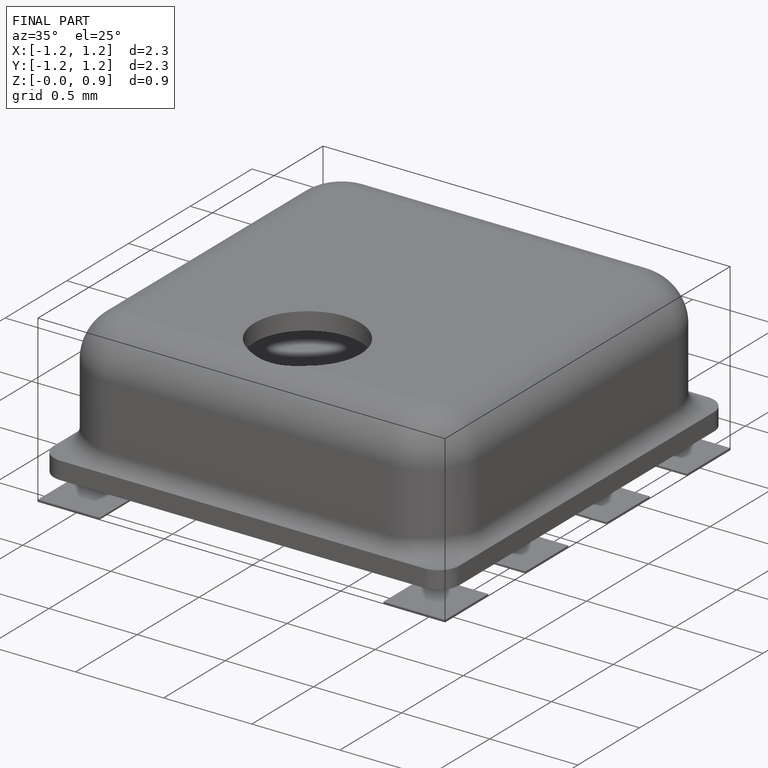
[diagram: finished part — iso view with bounding-box wireframe]
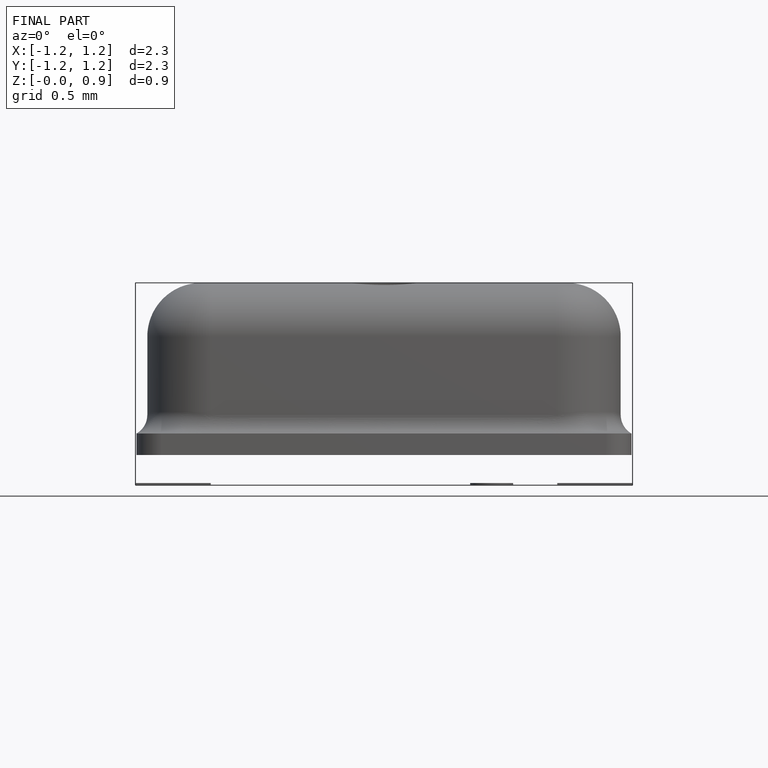
[diagram: finished part — front view with bounding-box wireframe]
